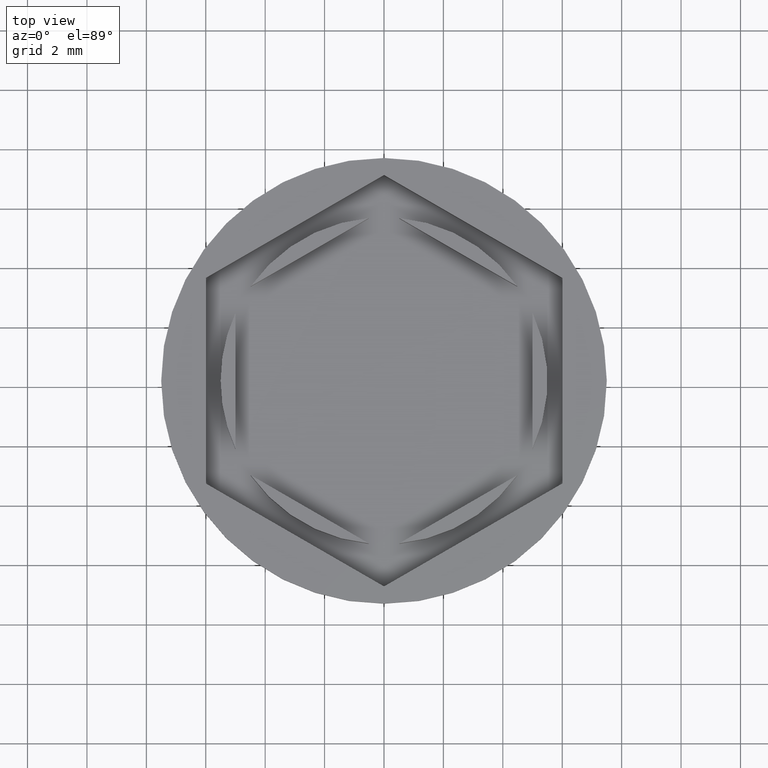
[diagram: clean part render]
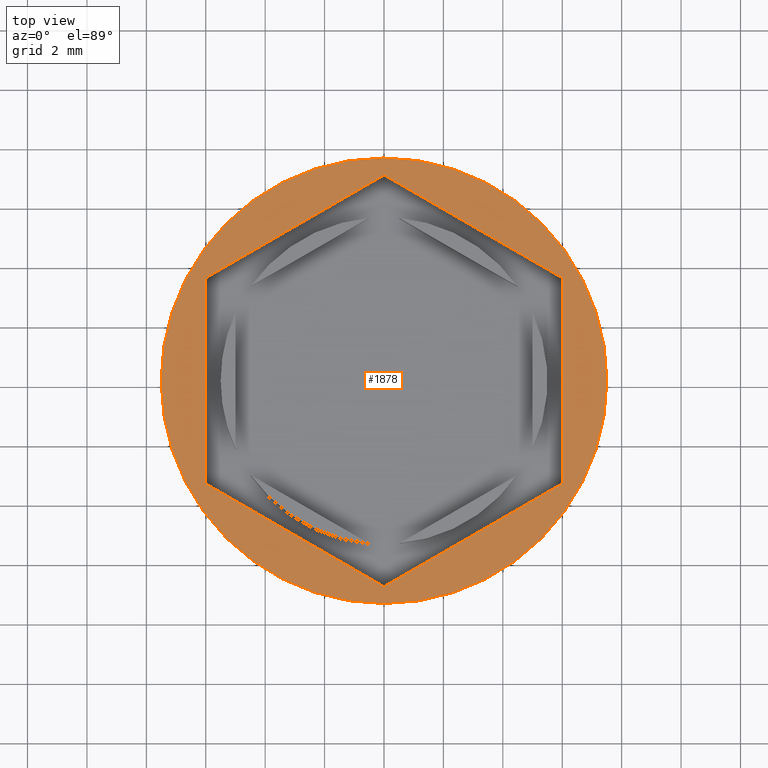
[diagram: same view with one face highlighted and labeled with its STEP entity id]
A machine part, top view. The second image highlights one B-rep face of the part: STEP entity #1878.
In plain terms, the highlighted planar face has unit normal (0, -0, 1).
Its self-contained STEP definition (entity closure, byte-faithful):
#18 = ORIENTED_EDGE ( 'NONE', *, *, #293, .F. ) ;
#74 = VERTEX_POINT ( 'NONE', #368 ) ;
#89 = DIRECTION ( 'NONE',  ( -1.251928832280966188E-16, -1.000000000000000000, 0.000000000000000000 ) ) ;
#154 = CARTESIAN_POINT ( 'NONE',  ( -6.000000000000000000, -3.464101615137755719, 0.000000000000000000 ) ) ;
#174 = CARTESIAN_POINT ( 'NONE',  ( -3.394223061414856671E-17, -6.928203230275509661, 0.000000000000000000 ) ) ;
#223 = VECTOR ( 'NONE', #1042, 1000.000000000000227 ) ;
#261 = AXIS2_PLACEMENT_3D ( 'NONE', #552, #419, #561 ) ;
#285 = VECTOR ( 'NONE', #1525, 1000.000000000000000 ) ;
#293 = EDGE_CURVE ( 'NONE', #481, #1062, #1002, .T. ) ;
#301 = VERTEX_POINT ( 'NONE', #1397 ) ;
#303 = CARTESIAN_POINT ( 'NONE',  ( 7.500000000000000000, 0.000000000000000000, 0.000000000000000000 ) ) ;
#310 = ORIENTED_EDGE ( 'NONE', *, *, #529, .F. ) ;
#368 = CARTESIAN_POINT ( 'NONE',  ( 6.000000000000000000, -3.464101615137753942, 0.000000000000000000 ) ) ;
#419 = DIRECTION ( 'NONE',  ( -0.000000000000000000, -0.000000000000000000, 1.000000000000000000 ) ) ;
#421 = ORIENTED_EDGE ( 'NONE', *, *, #1014, .T. ) ;
#481 = VERTEX_POINT ( 'NONE', #1623 ) ;
#529 = EDGE_CURVE ( 'NONE', #1062, #1440, #1223, .T. ) ;
#547 = VECTOR ( 'NONE', #89, 1000.000000000000000 ) ;
#552 = CARTESIAN_POINT ( 'NONE',  ( 0.000000000000000000, 0.000000000000000000, 0.000000000000000000 ) ) ;
#561 = DIRECTION ( 'NONE',  ( 1.000000000000000000, 0.000000000000000000, 0.000000000000000000 ) ) ;
#570 = EDGE_CURVE ( 'NONE', #74, #589, #1668, .T. ) ;
#573 = DIRECTION ( 'NONE',  ( 0.000000000000000000, -0.000000000000000000, 1.000000000000000000 ) ) ;
#586 = DIRECTION ( 'NONE',  ( -0.000000000000000000, -0.000000000000000000, 1.000000000000000000 ) ) ;
#589 = VERTEX_POINT ( 'NONE', #928 ) ;
#601 = CARTESIAN_POINT ( 'NONE',  ( 6.000000000000000000, 3.464101615137757051, 0.000000000000000000 ) ) ;
#689 = LINE ( 'NONE', #1017, #1257 ) ;
#703 = CARTESIAN_POINT ( 'NONE',  ( -3.394223061414856671E-17, -6.928203230275509661, 0.000000000000000000 ) ) ;
#723 = CARTESIAN_POINT ( 'NONE',  ( -7.500000000000000000, 9.184850993605147944E-16, 0.000000000000000000 ) ) ;
#750 = VECTOR ( 'NONE', #790, 1000.000000000000000 ) ;
#757 = CARTESIAN_POINT ( 'NONE',  ( 6.000000000000000000, -3.464101615137753942, 0.000000000000000000 ) ) ;
#790 = DIRECTION ( 'NONE',  ( 0.8660254037844385966, 0.5000000000000001110, 0.000000000000000000 ) ) ;
#895 = FACE_OUTER_BOUND ( 'NONE', #1897, .T. ) ;
#928 = CARTESIAN_POINT ( 'NONE',  ( 6.000000000000000000, 3.464101615137757051, 0.000000000000000000 ) ) ;
#932 = VERTEX_POINT ( 'NONE', #723 ) ;
#1002 = LINE ( 'NONE', #1328, #547 ) ;
#1009 = EDGE_CURVE ( 'NONE', #589, #301, #1828, .T. ) ;
#1014 = EDGE_CURVE ( 'NONE', #932, #1068, #1747, .T. ) ;
#1017 = CARTESIAN_POINT ( 'NONE',  ( 0.000000000000000000, 6.928203230275509661, 0.000000000000000000 ) ) ;
#1042 = DIRECTION ( 'NONE',  ( -0.8660254037844387076, 0.4999999999999997780, 0.000000000000000000 ) ) ;
#1049 = DIRECTION ( 'NONE',  ( 1.000000000000000000, 0.000000000000000000, 0.000000000000000000 ) ) ;
#1062 = VERTEX_POINT ( 'NONE', #1694 ) ;
#1068 = VERTEX_POINT ( 'NONE', #303 ) ;
#1126 = AXIS2_PLACEMENT_3D ( 'NONE', #1520, #586, #1049 ) ;
#1185 = PLANE ( 'NONE',  #1330 ) ;
#1192 = CIRCLE ( 'NONE', #261, 7.500000000000000000 ) ;
#1214 = EDGE_CURVE ( 'NONE', #301, #481, #689, .T. ) ;
#1223 = LINE ( 'NONE', #154, #285 ) ;
#1257 = VECTOR ( 'NONE', #1322, 1000.000000000000114 ) ;
#1313 = CARTESIAN_POINT ( 'NONE',  ( 0.000000000000000000, 0.000000000000000000, 0.000000000000000000 ) ) ;
#1322 = DIRECTION ( 'NONE',  ( -0.8660254037844383745, -0.5000000000000003331, 0.000000000000000000 ) ) ;
#1328 = CARTESIAN_POINT ( 'NONE',  ( -5.999999999999999112, 3.464101615137752610, 0.000000000000000000 ) ) ;
#1330 = AXIS2_PLACEMENT_3D ( 'NONE', #1313, #573, #1654 ) ;
#1397 = CARTESIAN_POINT ( 'NONE',  ( 0.000000000000000000, 6.928203230275509661, 0.000000000000000000 ) ) ;
#1412 = EDGE_CURVE ( 'NONE', #1068, #932, #1192, .T. ) ;
#1440 = VERTEX_POINT ( 'NONE', #703 ) ;
#1520 = CARTESIAN_POINT ( 'NONE',  ( 0.000000000000000000, 0.000000000000000000, 0.000000000000000000 ) ) ;
#1525 = DIRECTION ( 'NONE',  ( 0.8660254037844387076, -0.4999999999999999445, 0.000000000000000000 ) ) ;
#1551 = ORIENTED_EDGE ( 'NONE', *, *, #1412, .T. ) ;
#1564 = EDGE_LOOP ( 'NONE', ( #1856, #1646, #1911, #310, #18, #1721 ) ) ;
#1623 = CARTESIAN_POINT ( 'NONE',  ( -5.999999999999999112, 3.464101615137752610, 0.000000000000000000 ) ) ;
#1631 = EDGE_CURVE ( 'NONE', #1440, #74, #1854, .T. ) ;
#1646 = ORIENTED_EDGE ( 'NONE', *, *, #570, .F. ) ;
#1654 = DIRECTION ( 'NONE',  ( 1.000000000000000000, 0.000000000000000000, 0.000000000000000000 ) ) ;
#1668 = LINE ( 'NONE', #757, #1968 ) ;
#1694 = CARTESIAN_POINT ( 'NONE',  ( -6.000000000000000000, -3.464101615137755719, 0.000000000000000000 ) ) ;
#1721 = ORIENTED_EDGE ( 'NONE', *, *, #1214, .F. ) ;
#1747 = CIRCLE ( 'NONE', #1126, 7.500000000000000000 ) ;
#1828 = LINE ( 'NONE', #601, #223 ) ;
#1845 = DIRECTION ( 'NONE',  ( 0.000000000000000000, 1.000000000000000000, 0.000000000000000000 ) ) ;
#1854 = LINE ( 'NONE', #174, #750 ) ;
#1856 = ORIENTED_EDGE ( 'NONE', *, *, #1009, .F. ) ;
#1878 = ADVANCED_FACE ( 'NONE', ( #1961, #895 ), #1185, .T. ) ;
#1897 = EDGE_LOOP ( 'NONE', ( #1551, #421 ) ) ;
#1911 = ORIENTED_EDGE ( 'NONE', *, *, #1631, .F. ) ;
#1961 = FACE_BOUND ( 'NONE', #1564, .T. ) ;
#1968 = VECTOR ( 'NONE', #1845, 1000.000000000000000 ) ;